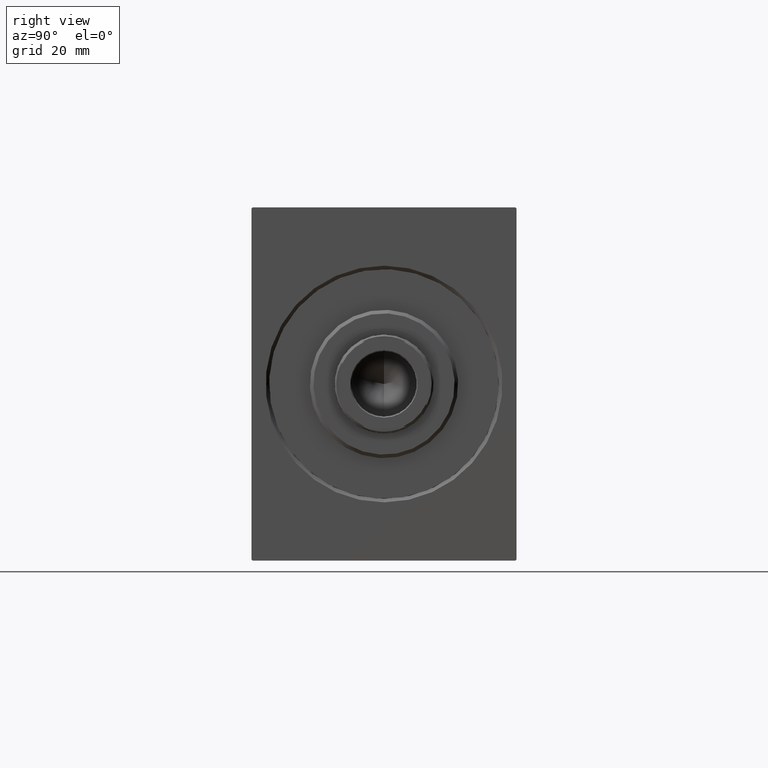
[diagram: clean part render]
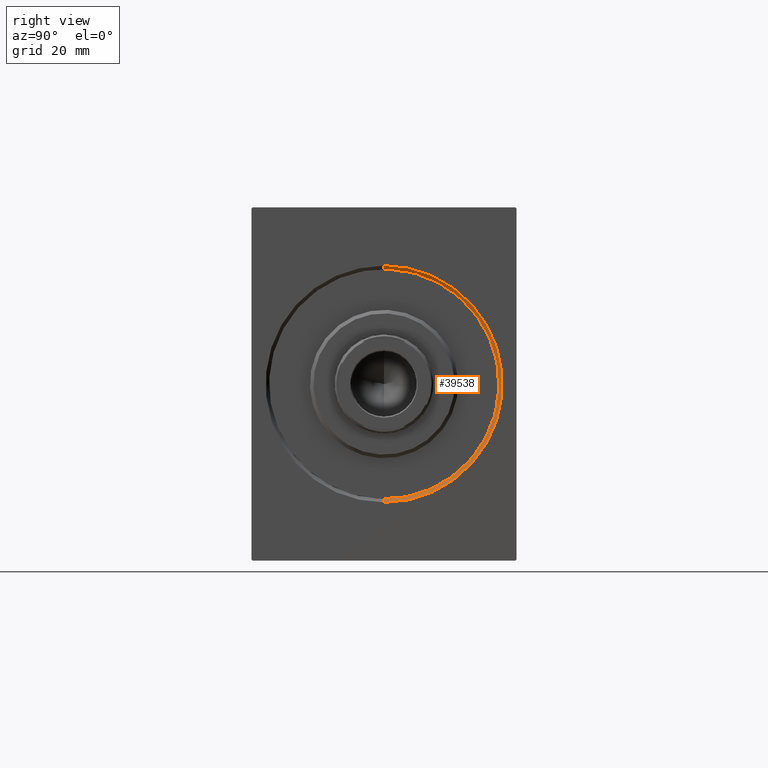
[diagram: same view with one face highlighted and labeled with its STEP entity id]
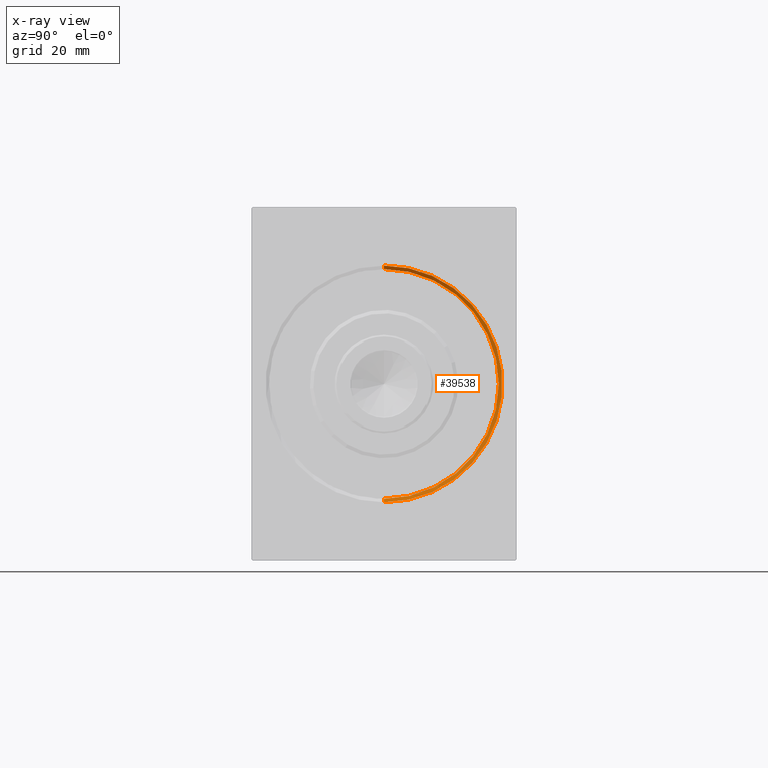
[diagram: x-ray of the same camera — body ghosted, the highlighted face saturated]
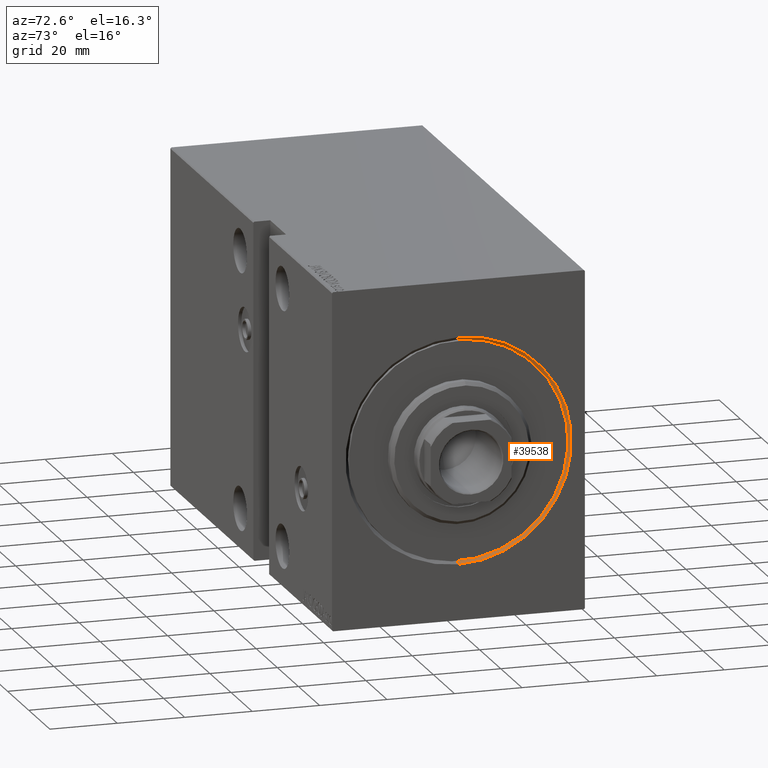
[diagram: same view with one face highlighted and labeled with its STEP entity id]
A machine part, right view. The second image highlights one B-rep face of the part: STEP entity #39538.
The next image is the same camera in x-ray: the body ghosted, the highlighted face saturated — about 0% of this face is hidden behind the body in this view.
A second angle (auxiliary view) of the same face is appended — the face is thin or edge-on in the first view.
In plain terms, the highlighted conical surface has half-angle 45 deg.
Its self-contained STEP definition (entity closure, byte-faithful):
#1100 = CARTESIAN_POINT ( 'NONE',  ( 1.000000000000000888, 0.000000000000000000, 0.000000000000000000 ) ) ;
#1681 = AXIS2_PLACEMENT_3D ( 'NONE', #8787, #32696, #9685 ) ;
#2810 = CARTESIAN_POINT ( 'NONE',  ( 1.000000000000000888, 3.980102097228898626E-15, -32.50000000000000000 ) ) ;
#6157 = VERTEX_POINT ( 'NONE', #34275 ) ;
#8428 = CIRCLE ( 'NONE', #30345, 32.50000000000000000 ) ;
#8787 = CARTESIAN_POINT ( 'NONE',  ( 0.000000000000000000, 0.000000000000000000, 0.000000000000000000 ) ) ;
#8966 = EDGE_CURVE ( 'NONE', #25359, #6157, #27142, .T. ) ;
#9685 = DIRECTION ( 'NONE',  ( 0.000000000000000000, 0.000000000000000000, -1.000000000000000000 ) ) ;
#11148 = ORIENTED_EDGE ( 'NONE', *, *, #28220, .F. ) ;
#12229 = DIRECTION ( 'NONE',  ( 0.000000000000000000, 0.000000000000000000, 1.000000000000000000 ) ) ;
#12260 = EDGE_CURVE ( 'NONE', #21260, #25359, #15281, .T. ) ;
#12384 = AXIS2_PLACEMENT_3D ( 'NONE', #39425, #26374, #12229 ) ;
#13195 = VECTOR ( 'NONE', #35572, 1000.000000000000114 ) ;
#14248 = EDGE_CURVE ( 'NONE', #40591, #6157, #25847, .T. ) ;
#15281 = LINE ( 'NONE', #28767, #43498 ) ;
#16222 = CARTESIAN_POINT ( 'NONE',  ( 0.000000000000000000, 0.000000000000000000, 33.50000000000000000 ) ) ;
#18572 = DIRECTION ( 'NONE',  ( -0.7071067811865474617, 0.000000000000000000, 0.7071067811865474617 ) ) ;
#21260 = VERTEX_POINT ( 'NONE', #28827 ) ;
#21869 = CARTESIAN_POINT ( 'NONE',  ( 1.000000000000000888, 3.980102097228898626E-15, -32.50000000000000000 ) ) ;
#25359 = VERTEX_POINT ( 'NONE', #16222 ) ;
#25847 = LINE ( 'NONE', #21869, #13195 ) ;
#26374 = DIRECTION ( 'NONE',  ( -1.000000000000000000, 0.000000000000000000, 0.000000000000000000 ) ) ;
#27142 = CIRCLE ( 'NONE', #1681, 33.50000000000000000 ) ;
#27628 = ORIENTED_EDGE ( 'NONE', *, *, #12260, .F. ) ;
#28220 = EDGE_CURVE ( 'NONE', #40591, #21260, #8428, .T. ) ;
#28767 = CARTESIAN_POINT ( 'NONE',  ( 1.000000000000000888, 0.000000000000000000, 32.50000000000000000 ) ) ;
#28827 = CARTESIAN_POINT ( 'NONE',  ( 1.000000000000000888, 0.000000000000000000, 32.50000000000000000 ) ) ;
#30345 = AXIS2_PLACEMENT_3D ( 'NONE', #1100, #38289, #31653 ) ;
#31237 = ORIENTED_EDGE ( 'NONE', *, *, #8966, .F. ) ;
#31653 = DIRECTION ( 'NONE',  ( 0.000000000000000000, 0.000000000000000000, -1.000000000000000000 ) ) ;
#32696 = DIRECTION ( 'NONE',  ( 1.000000000000000000, 0.000000000000000000, 0.000000000000000000 ) ) ;
#33017 = FACE_OUTER_BOUND ( 'NONE', #43748, .T. ) ;
#34275 = CARTESIAN_POINT ( 'NONE',  ( 0.000000000000000000, 4.102566777143633774E-15, -33.50000000000000000 ) ) ;
#35572 = DIRECTION ( 'NONE',  ( -0.7071067811865474617, 8.659560562354932858E-17, -0.7071067811865474617 ) ) ;
#38289 = DIRECTION ( 'NONE',  ( -1.000000000000000000, 0.000000000000000000, 0.000000000000000000 ) ) ;
#39425 = CARTESIAN_POINT ( 'NONE',  ( 1.000000000000000888, 0.000000000000000000, 0.000000000000000000 ) ) ;
#39538 = ADVANCED_FACE ( 'NONE', ( #33017 ), #40651, .F. ) ;
#40591 = VERTEX_POINT ( 'NONE', #2810 ) ;
#40651 = CONICAL_SURFACE ( 'NONE', #12384, 32.50000000000000000, 0.7853981633974482790 ) ;
#41251 = ORIENTED_EDGE ( 'NONE', *, *, #14248, .T. ) ;
#43498 = VECTOR ( 'NONE', #18572, 1000.000000000000114 ) ;
#43748 = EDGE_LOOP ( 'NONE', ( #11148, #41251, #31237, #27628 ) ) ;